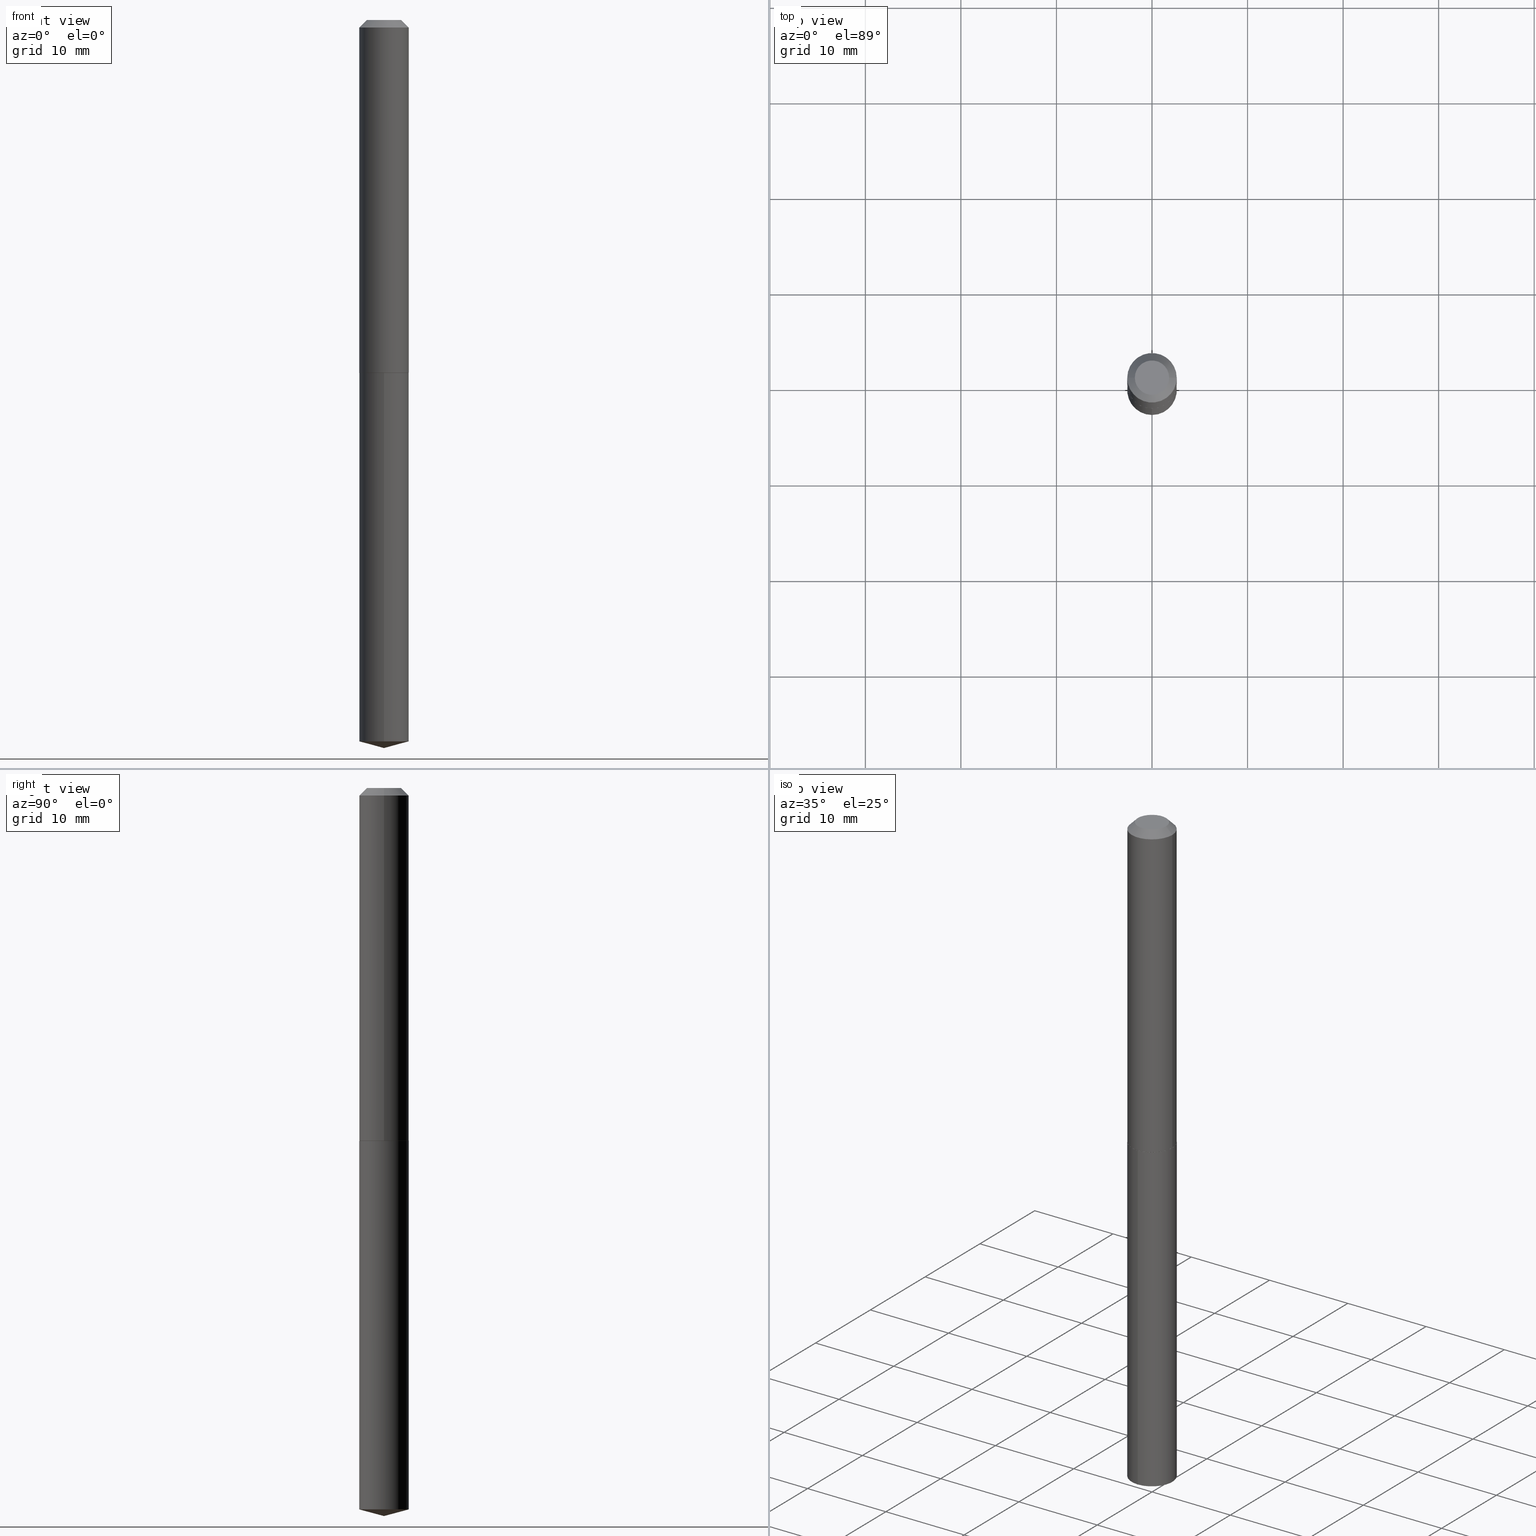
[diagram: canonical four-view strip — front | top / right | iso, engineering-drawing reading convention]
A machine part, canonical four-view strip (front | top / right | iso — engineering-drawing reading convention). The complete STEP part file that produces these views, byte-faithful:
ISO-10303-21;
HEADER;
FILE_DESCRIPTION (( 'STEP AP203' ),
    '1' );
FILE_NAME ('53006.STEP',
    '2024-04-22T18:51:04',
    ( '' ),
    ( '' ),
    'SwSTEP 2.0',
    'SolidWorks 2023',
    '' );
FILE_SCHEMA (( 'CONFIG_CONTROL_DESIGN' ));
ENDSEC;

DATA;
#1 = CARTESIAN_POINT ( 'NONE',  ( 7.642090019328598283E-31, -1.091087918388489651E-16, -0.03125000000000019429 ) ) ;
#2 = VERTEX_POINT ( 'NONE', #36 ) ;
#3 = CARTESIAN_POINT ( 'NONE',  ( 3.555711644193189020E-29, -5.076613866677933538E-15, -1.454000000000000181 ) ) ;
#4 = MANIFOLD_SOLID_BREP ( 'Body-Move/Copy2[1]', #266 ) ;
#5 = VECTOR ( 'NONE', #325, 39.37007874015748143 ) ;
#6 = ORIENTED_EDGE ( 'NONE', *, *, #367, .F. ) ;
#7 = CARTESIAN_POINT ( 'NONE',  ( 3.555711644193189580E-29, -5.076613866677935115E-15, -1.454000000000000403 ) ) ;
#8 = VERTEX_POINT ( 'NONE', #282 ) ;
#9 = PLANE ( 'NONE',  #347 ) ;
#10 = ORIENTED_EDGE ( 'NONE', *, *, #355, .T. ) ;
#11 = DIRECTION ( 'NONE',  ( -2.445468806185136597E-29, 3.491481338843145583E-15, 1.000000000000000000 ) ) ;
#12 = LINE ( 'NONE', #104, #154 ) ;
#13 = AXIS2_PLACEMENT_3D ( 'NONE', #52, #299, #22 ) ;
#14 = EDGE_CURVE ( 'NONE', #365, #8, #12, .T. ) ;
#15 = CALENDAR_DATE ( 2024, 22, 4 ) ;
#16 = PERSON_AND_ORGANIZATION ( #289, #128 ) ;
#17 = PERSON_AND_ORGANIZATION_ROLE ( 'classification_officer' ) ;
#18 = DIRECTION ( 'NONE',  ( 1.000000000000000000, -6.982962677686263555E-15, 0.000000000000000000 ) ) ;
#19 = DATE_AND_TIME ( #15, #285 ) ;
#20 = CARTESIAN_POINT ( 'NONE',  ( -7.122621931239635953E-16, -0.1020000000000050727, -1.453999999999999737 ) ) ;
#21 = DIRECTION ( 'NONE',  ( -2.445468806185136597E-29, 3.491481338843145583E-15, 1.000000000000000000 ) ) ;
#22 = DIRECTION ( 'NONE',  ( -1.000000000000000000, 6.982962677686266711E-15, 0.000000000000000000 ) ) ;
#23 = AXIS2_PLACEMENT_3D ( 'NONE', #208, #37, #273 ) ;
#24 = LOCAL_TIME ( 14, 51, 4.000000000000000000, #353 ) ;
#25 = DIRECTION ( 'NONE',  ( -6.982962677686266711E-15, -1.000000000000000000, 2.678282346729670008E-15 ) ) ;
#26 = VERTEX_POINT ( 'NONE', #68 ) ;
#27 = DIRECTION ( 'NONE',  ( 6.982962677686265922E-15, 1.000000000000000000, -3.509091813861953819E-15 ) ) ;
#28 = ORIENTED_EDGE ( 'NONE', *, *, #265, .T. ) ;
#29 = LINE ( 'NONE', #343, #105 ) ;
#30 = CIRCLE ( 'NONE', #252, 0.1015000000000002706 ) ;
#31 = VERTEX_POINT ( 'NONE', #220 ) ;
#32 = EDGE_CURVE ( 'NONE', #145, #61, #190, .T. ) ;
#33 = CYLINDRICAL_SURFACE ( 'NONE', #23, 0.1020000000000000767 ) ;
#34 = ORIENTED_EDGE ( 'NONE', *, *, #175, .T. ) ;
#35 = CARTESIAN_POINT ( 'NONE',  ( -0.1019999999999999934, 6.031534012851501906E-16, -0.03125000000000019429 ) ) ;
#36 = CARTESIAN_POINT ( 'NONE',  ( -0.1019999999999999934, -1.867234868448377340E-15, -0.03125000000000019429 ) ) ;
#37 = DIRECTION ( 'NONE',  ( -2.445468806185136597E-29, 3.491481338843145583E-15, 1.000000000000000000 ) ) ;
#38 = AXIS2_PLACEMENT_3D ( 'NONE', #156, #51, #45 ) ;
#39 = EDGE_CURVE ( 'NONE', #31, #91, #369, .T. ) ;
#40 = AXIS2_PLACEMENT_3D ( 'NONE', #3, #363, #144 ) ;
#41 = DIRECTION ( 'NONE',  ( 1.000000000000000000, -6.982962677686267499E-15, 4.876168129004390450E-29 ) ) ;
#42 = APPROVAL ( #130, 'UNSPECIFIED' ) ;
#43 = APPROVAL_ROLE ( '' ) ;
#44 = APPROVAL_DATE_TIME ( #19, #194 ) ;
#45 = DIRECTION ( 'NONE',  ( -6.982962677686265922E-15, -1.000000000000000000, 5.356564693459337649E-15 ) ) ;
#46 = EDGE_CURVE ( 'NONE', #335, #61, #205, .T. ) ;
#47 = APPROVAL_STATUS ( 'not_yet_approved' ) ;
#48 = CONICAL_SURFACE ( 'NONE', #181, 0.1020000000000001739, 0.7853981633971751641 ) ;
#49 = VECTOR ( 'NONE', #64, 39.37007874015748143 ) ;
#50 = DIRECTION ( 'NONE',  ( 2.438088387897960049E-29, -3.491481338843145188E-15, -1.000000000000000000 ) ) ;
#51 = DIRECTION ( 'NONE',  ( -2.433171477205870271E-29, 3.509091813861953819E-15, 1.000000000000000000 ) ) ;
#52 = CARTESIAN_POINT ( 'NONE',  ( 7.642090019328598283E-31, -1.091087918388489651E-16, -0.03125000000000019429 ) ) ;
#53 = ADVANCED_BREP_SHAPE_REPRESENTATION ( '53006', ( #4, #256, #158 ), #269 ) ;
#54 = CIRCLE ( 'NONE', #332, 0.1019999999999999934 ) ;
#55 = DIRECTION ( 'NONE',  ( -6.982962677686266711E-15, -1.000000000000000000, 3.510303681827690131E-15 ) ) ;
#56 = ORIENTED_EDGE ( 'NONE', *, *, #341, .F. ) ;
#57 = CARTESIAN_POINT ( 'NONE',  ( 2.246126659432003959E-48, -3.206873584422743139E-34, -9.184850993605185290E-20 ) ) ;
#58 = ORIENTED_EDGE ( 'NONE', *, *, #286, .T. ) ;
#59 = FACE_OUTER_BOUND ( 'NONE', #122, .T. ) ;
#60 = EDGE_CURVE ( 'NONE', #8, #65, #258, .T. ) ;
#61 = VERTEX_POINT ( 'NONE', #357 ) ;
#62 = CONICAL_SURFACE ( 'NONE', #287, 146.9311341562529378, 1.308996938995743653 ) ;
#63 = ORIENTED_EDGE ( 'NONE', *, *, #14, .F. ) ;
#64 = DIRECTION ( 'NONE',  ( 0.7071067811863543939, -2.468850131080234027E-15, 0.7071067811867406405 ) ) ;
#65 = VERTEX_POINT ( 'NONE', #330 ) ;
#66 = CYLINDRICAL_SURFACE ( 'NONE', #40, 0.1020000000000000212 ) ;
#67 = EDGE_CURVE ( 'NONE', #61, #335, #118, .T. ) ;
#68 = CARTESIAN_POINT ( 'NONE',  ( 7.247535904753751127E-16, 0.1019999999999949281, -1.454000000000000403 ) ) ;
#69 = APPLICATION_CONTEXT ( 'configuration controlled 3d designs of mechanical parts and assemblies' ) ;
#70 = AXIS2_PLACEMENT_3D ( 'NONE', #114, #85, #139 ) ;
#71 = APPROVAL_PERSON_ORGANIZATION ( #193, #42, #320 ) ;
#72 = CC_DESIGN_PERSON_AND_ORGANIZATION_ASSIGNMENT ( #284, #110, ( #225 ) ) ;
#73 = SECURITY_CLASSIFICATION_LEVEL ( 'unclassified' ) ;
#74 = DIRECTION ( 'NONE',  ( 0.000000000000000000, 0.000000000000000000, 1.000000000000000000 ) ) ;
#75 = CIRCLE ( 'NONE', #106, 0.1019999999999999934 ) ;
#76 = APPLICATION_PROTOCOL_DEFINITION ( 'international standard', 'config_control_design', 1994, #89 ) ;
#77 = FACE_OUTER_BOUND ( 'NONE', #185, .T. ) ;
#78 = ADVANCED_FACE ( 'NONE', ( #198 ), #48, .T. ) ;
#79 = CALENDAR_DATE ( 2024, 22, 4 ) ;
#80 = CARTESIAN_POINT ( 'NONE',  ( 1.123063329716001979E-48, -1.603436792211371569E-34, -4.592425496802592645E-20 ) ) ;
#81 = AXIS2_PLACEMENT_3D ( 'NONE', #164, #21, #270 ) ;
#82 = AXIS2_PLACEMENT_3D ( 'NONE', #1, #278, #237 ) ;
#83 = EDGE_LOOP ( 'NONE', ( #119, #182 ) ) ;
#84 = DIMENSIONAL_EXPONENTS ( 1.000000000000000000, 0.000000000000000000, 0.000000000000000000, 0.000000000000000000, 0.000000000000000000, 0.000000000000000000, 0.000000000000000000 ) ;
#85 = DIRECTION ( 'NONE',  ( -2.445468806185136597E-29, 3.491481338843145583E-15, 1.000000000000000000 ) ) ;
#86 = EDGE_CURVE ( 'NONE', #91, #102, #137, .T. ) ;
#87 = CARTESIAN_POINT ( 'NONE',  ( 7.299514431617611935E-29, -1.052727544158586146E-14, -3.000000000000000444 ) ) ;
#88 = CC_DESIGN_PERSON_AND_ORGANIZATION_ASSIGNMENT ( #16, #257, ( #259 ) ) ;
#89 = APPLICATION_CONTEXT ( 'configuration controlled 3d designs of mechanical parts and assemblies' ) ;
#90 = DIRECTION ( 'NONE',  ( -2.433171477205870271E-29, 3.509091813861953819E-15, 1.000000000000000000 ) ) ;
#91 = VERTEX_POINT ( 'NONE', #323 ) ;
#92 = VECTOR ( 'NONE', #248, 39.37007874015748143 ) ;
#93 = DIRECTION ( 'NONE',  ( 2.433171477205869991E-29, -3.509091813861953819E-15, -1.000000000000000000 ) ) ;
#94 = APPROVAL_PERSON_ORGANIZATION ( #232, #194, #43 ) ;
#95 = ORIENTED_EDGE ( 'NONE', *, *, #67, .F. ) ;
#96 = PLANE ( 'NONE',  #206 ) ;
#97 = ORIENTED_EDGE ( 'NONE', *, *, #387, .F. ) ;
#98 = DIRECTION ( 'NONE',  ( -2.445468806185136597E-29, 3.491481338843145583E-15, 1.000000000000000000 ) ) ;
#99 = ORIENTED_EDGE ( 'NONE', *, *, #86, .F. ) ;
#100 = CIRCLE ( 'NONE', #82, 0.1019999999999999934 ) ;
#101 = EDGE_CURVE ( 'NONE', #338, #365, #227, .T. ) ;
#102 = VERTEX_POINT ( 'NONE', #140 ) ;
#103 = DIRECTION ( 'NONE',  ( 1.000000000000000000, -6.982962677686267499E-15, 4.876168129004390450E-29 ) ) ;
#104 = CARTESIAN_POINT ( 'NONE',  ( -0.1020000000000001739, -4.350114535533209201E-15, -1.453500000000000236 ) ) ;
#105 = VECTOR ( 'NONE', #177, 39.37007874015748854 ) ;
#106 = AXIS2_PLACEMENT_3D ( 'NONE', #301, #169, #296 ) ;
#107 = PERSON_AND_ORGANIZATION_ROLE ( 'design_owner' ) ;
#108 = CARTESIAN_POINT ( 'NONE',  ( 3.555711644193189020E-29, -5.076613866677933538E-15, -1.454000000000000181 ) ) ;
#109 = CARTESIAN_POINT ( 'NONE',  ( 3.554488909790096218E-29, -5.074868126008512823E-15, -1.453500000000000236 ) ) ;
#110 = PERSON_AND_ORGANIZATION_ROLE ( 'creator' ) ;
#111 = ORIENTED_EDGE ( 'NONE', *, *, #355, .F. ) ;
#112 = DIRECTION ( 'NONE',  ( -2.433171477205870271E-29, 3.509091813861953819E-15, 1.000000000000000000 ) ) ;
#113 = CONICAL_SURFACE ( 'NONE', #326, 0.1019999999999999934, 0.7853981633974452814 ) ;
#114 = CARTESIAN_POINT ( 'NONE',  ( 3.554488909790096218E-29, -5.074868126008512823E-15, -1.453500000000000236 ) ) ;
#115 = DIRECTION ( 'NONE',  ( -2.445468806185136877E-29, 3.491481338843145188E-15, 1.000000000000000000 ) ) ;
#116 = EDGE_LOOP ( 'NONE', ( #385, #241, #362, #56 ) ) ;
#117 = CARTESIAN_POINT ( 'NONE',  ( 3.555711644193189580E-29, -5.076613866677935115E-15, -1.454000000000000403 ) ) ;
#118 = CIRCLE ( 'NONE', #165, 0.1020000000000000351 ) ;
#119 = ORIENTED_EDGE ( 'NONE', *, *, #39, .T. ) ;
#120 = VECTOR ( 'NONE', #115, 39.37007874015748143 ) ;
#121 = DIRECTION ( 'NONE',  ( -0.7071067811865453523, 2.468850131082234184E-15, -0.7071067811865496822 ) ) ;
#122 = EDGE_LOOP ( 'NONE', ( #209, #124 ) ) ;
#123 = FACE_OUTER_BOUND ( 'NONE', #342, .T. ) ;
#124 = ORIENTED_EDGE ( 'NONE', *, *, #213, .T. ) ;
#125 = CARTESIAN_POINT ( 'NONE',  ( 7.642090019328598283E-31, -1.091087918388489651E-16, -0.03125000000000019429 ) ) ;
#126 = EDGE_LOOP ( 'NONE', ( #99, #302, #239, #309 ) ) ;
#127 = DIRECTION ( 'NONE',  ( 1.000000000000000000, -6.982962677686266711E-15, 0.000000000000000000 ) ) ;
#128 = ORGANIZATION ( 'UNSPECIFIED', 'UNSPECIFIED', '' ) ;
#129 = DIRECTION ( 'NONE',  ( -0.7071067811863543939, 7.493145998869656807E-15, 0.7071067811867406405 ) ) ;
#130 = APPROVAL_STATUS ( 'not_yet_approved' ) ;
#131 = SECURITY_CLASSIFICATION ( '', '', #73 ) ;
#132 = ADVANCED_FACE ( 'NONE', ( #390 ), #174, .T. ) ;
#133 = DATE_AND_TIME ( #226, #24 ) ;
#134 = AXIS2_PLACEMENT_3D ( 'NONE', #80, #50, #386 ) ;
#135 = COORDINATED_UNIVERSAL_TIME_OFFSET ( 5, 0, .BEHIND. ) ;
#136 = CC_DESIGN_APPROVAL ( #194, ( #225 ) ) ;
#137 = LINE ( 'NONE', #356, #5 ) ;
#138 = DATE_TIME_ROLE ( 'classification_date' ) ;
#139 = DIRECTION ( 'NONE',  ( 1.000000000000000000, -6.982962677686263555E-15, 0.000000000000000000 ) ) ;
#140 = CARTESIAN_POINT ( 'NONE',  ( 0.1019999999999999934, -8.213709849628480961E-16, -0.03125000000000019429 ) ) ;
#141 = LINE ( 'NONE', #184, #300 ) ;
#142 = DIRECTION ( 'NONE',  ( -2.445468806185136597E-29, 3.491481338843145583E-15, 1.000000000000000000 ) ) ;
#143 = ORIENTED_EDGE ( 'NONE', *, *, #337, .F. ) ;
#144 = DIRECTION ( 'NONE',  ( -6.982962677686265922E-15, -1.000000000000000000, 2.678282346729669219E-15 ) ) ;
#145 = VERTEX_POINT ( 'NONE', #87 ) ;
#146 = AXIS2_PLACEMENT_3D ( 'NONE', #201, #142, #264 ) ;
#147 = DIRECTION ( 'NONE',  ( -2.433171477205870271E-29, 3.509091813861953819E-15, 1.000000000000000000 ) ) ;
#148 = ORIENTED_EDGE ( 'NONE', *, *, #367, .T. ) ;
#149 = DIRECTION ( 'NONE',  ( 1.000000000000000000, -6.982962677686271444E-15, 0.000000000000000000 ) ) ;
#150 = ADVANCED_FACE ( 'NONE', ( #231 ), #191, .T. ) ;
#151 = ORIENTED_EDGE ( 'NONE', *, *, #101, .F. ) ;
#152 = CARTESIAN_POINT ( 'NONE',  ( 0.1015000000000002706, -5.785384578463093174E-15, -1.454000000000000403 ) ) ;
#153 = ORIENTED_EDGE ( 'NONE', *, *, #46, .T. ) ;
#154 = VECTOR ( 'NONE', #129, 39.37007874015748143 ) ;
#155 = CARTESIAN_POINT ( 'NONE',  ( 0.000000000000000000, 0.000000000000000000, 0.000000000000000000 ) ) ;
#156 = CARTESIAN_POINT ( 'NONE',  ( 7.250894182052361242E-29, -1.040576346250403292E-14, -2.972669182372025265 ) ) ;
#157 = CIRCLE ( 'NONE', #318, 0.1019999999999999934 ) ;
#158 = AXIS2_PLACEMENT_3D ( 'NONE', #155, #74, #378 ) ;
#159 = PRODUCT ( '53006', '53006', '', ( #162 ) ) ;
#160 = ADVANCED_FACE ( 'NONE', ( #263 ), #352, .F. ) ;
#161 = DESIGN_CONTEXT ( 'detailed design', #69, 'design' ) ;
#162 = MECHANICAL_CONTEXT ( 'NONE', #89, 'mechanical' ) ;
#163 = DATE_AND_TIME ( #382, #389 ) ;
#164 = CARTESIAN_POINT ( 'NONE',  ( 3.554488909790096218E-29, -5.074868126008512823E-15, -1.453500000000000236 ) ) ;
#165 = AXIS2_PLACEMENT_3D ( 'NONE', #298, #90, #293 ) ;
#166 = CIRCLE ( 'NONE', #375, 0.07074999999999999345 ) ;
#167 = APPROVAL_ROLE ( '' ) ;
#168 = ORIENTED_EDGE ( 'NONE', *, *, #60, .T. ) ;
#169 = DIRECTION ( 'NONE',  ( -2.433171477205870271E-29, 3.509091813861953819E-15, 1.000000000000000000 ) ) ;
#170 = EDGE_LOOP ( 'NONE', ( #247, #153, #58, #277 ) ) ;
#171 = DIRECTION ( 'NONE',  ( -2.445468806185136597E-29, 3.491481338843145583E-15, 1.000000000000000000 ) ) ;
#172 = SHAPE_DEFINITION_REPRESENTATION ( #253, #53 ) ;
#173 = DIRECTION ( 'NONE',  ( -2.433171477205870271E-29, 3.509091813861953819E-15, 1.000000000000000000 ) ) ;
#174 = CYLINDRICAL_SURFACE ( 'NONE', #146, 0.1020000000000000767 ) ;
#175 = EDGE_CURVE ( 'NONE', #8, #2, #328, .T. ) ;
#176 = ORIENTED_EDGE ( 'NONE', *, *, #349, .F. ) ;
#177 = DIRECTION ( 'NONE',  ( 6.863315791527684004E-15, 0.9659258262890682012, 0.2588190451025207395 ) ) ;
#178 = ORIENTED_EDGE ( 'NONE', *, *, #359, .T. ) ;
#179 = CARTESIAN_POINT ( 'NONE',  ( 0.1020000000000001739, -5.787130319132512311E-15, -1.453500000000000236 ) ) ;
#180 = ADVANCED_FACE ( 'NONE', ( #204 ), #215, .T. ) ;
#181 = AXIS2_PLACEMENT_3D ( 'NONE', #109, #171, #18 ) ;
#182 = ORIENTED_EDGE ( 'NONE', *, *, #337, .T. ) ;
#183 = AXIS2_PLACEMENT_3D ( 'NONE', #303, #339, #336 ) ;
#184 = CARTESIAN_POINT ( 'NONE',  ( 7.247535904753377404E-16, 0.1019999999999949419, -1.454000000000000403 ) ) ;
#185 = EDGE_LOOP ( 'NONE', ( #295, #28, #272, #307 ) ) ;
#186 = CC_DESIGN_PERSON_AND_ORGANIZATION_ASSIGNMENT ( #195, #107, ( #159 ) ) ;
#187 = DIRECTION ( 'NONE',  ( 1.000000000000000000, -6.982962677686265922E-15, 4.876176775795935793E-29 ) ) ;
#188 = ORIENTED_EDGE ( 'NONE', *, *, #32, .F. ) ;
#189 = FACE_OUTER_BOUND ( 'NONE', #211, .T. ) ;
#190 = LINE ( 'NONE', #346, #199 ) ;
#191 = CONICAL_SURFACE ( 'NONE', #267, 146.9311341562529378, 1.308996938995743653 ) ;
#192 =( NAMED_UNIT ( * ) SI_UNIT ( $, .STERADIAN. ) SOLID_ANGLE_UNIT ( ) );
#193 = PERSON_AND_ORGANIZATION ( #289, #128 ) ;
#194 = APPROVAL ( #288, 'UNSPECIFIED' ) ;
#195 = PERSON_AND_ORGANIZATION ( #289, #128 ) ;
#196 = CARTESIAN_POINT ( 'NONE',  ( 3.555711644193189020E-29, -5.076613866677933538E-15, -1.454000000000000181 ) ) ;
#197 = DATE_AND_TIME ( #79, #315 ) ;
#198 = FACE_OUTER_BOUND ( 'NONE', #116, .T. ) ;
#199 = VECTOR ( 'NONE', #374, 39.37007874015748854 ) ;
#200 = APPROVAL_DATE_TIME ( #163, #42 ) ;
#201 = CARTESIAN_POINT ( 'NONE',  ( 0.000000000000000000, 0.000000000000000000, 0.000000000000000000 ) ) ;
#202 = CC_DESIGN_PERSON_AND_ORGANIZATION_ASSIGNMENT ( #290, #292, ( #259 ) ) ;
#203 = DIRECTION ( 'NONE',  ( -6.982962677686265922E-15, -1.000000000000000000, 2.678282346729669219E-15 ) ) ;
#204 = FACE_OUTER_BOUND ( 'NONE', #275, .T. ) ;
#205 = CIRCLE ( 'NONE', #38, 0.1020000000000000351 ) ;
#206 = AXIS2_PLACEMENT_3D ( 'NONE', #308, #93, #27 ) ;
#207 = ORIENTED_EDGE ( 'NONE', *, *, #376, .T. ) ;
#208 = CARTESIAN_POINT ( 'NONE',  ( 0.000000000000000000, 0.000000000000000000, 0.000000000000000000 ) ) ;
#209 = ORIENTED_EDGE ( 'NONE', *, *, #221, .T. ) ;
#210 = LINE ( 'NONE', #179, #49 ) ;
#211 = EDGE_LOOP ( 'NONE', ( #151, #244 ) ) ;
#212 = LINE ( 'NONE', #35, #274 ) ;
#213 = EDGE_CURVE ( 'NONE', #26, #218, #75, .T. ) ;
#214 = ORIENTED_EDGE ( 'NONE', *, *, #46, .F. ) ;
#215 = CONICAL_SURFACE ( 'NONE', #70, 0.1020000000000001739, 0.7853981633971751641 ) ;
#216 = DIRECTION ( 'NONE',  ( 2.445468806185136597E-29, -3.491481338843145583E-15, -1.000000000000000000 ) ) ;
#217 = LOCAL_TIME ( 14, 51, 4.000000000000000000, #294 ) ;
#218 = VERTEX_POINT ( 'NONE', #20 ) ;
#219 =( LENGTH_UNIT ( ) NAMED_UNIT ( * ) SI_UNIT ( $, .METRE. ) );
#220 = CARTESIAN_POINT ( 'NONE',  ( -0.07074999999999999345, 5.485990053657267250E-16, -9.184850993969744569E-20 ) ) ;
#221 = EDGE_CURVE ( 'NONE', #218, #26, #54, .T. ) ;
#222 = CC_DESIGN_APPROVAL ( #42, ( #259 ) ) ;
#223 = EDGE_CURVE ( 'NONE', #65, #102, #350, .T. ) ;
#224 = COORDINATED_UNIVERSAL_TIME_OFFSET ( 5, 0, .BEHIND. ) ;
#225 = PRODUCT_DEFINITION ( 'UNKNOWN', '', #259, #161 ) ;
#226 = CALENDAR_DATE ( 2024, 22, 4 ) ;
#227 = CIRCLE ( 'NONE', #361, 0.1015000000000002706 ) ;
#228 = APPLICATION_PROTOCOL_DEFINITION ( 'international standard', 'config_control_design', 1994, #69 ) ;
#229 = CARTESIAN_POINT ( 'NONE',  ( -8.847675789794694845E-28, 1.276515512072786388E-13, 36.37007874015748143 ) ) ;
#230 =( NAMED_UNIT ( * ) PLANE_ANGLE_UNIT ( ) SI_UNIT ( $, .RADIAN. ) );
#231 = FACE_OUTER_BOUND ( 'NONE', #327, .T. ) ;
#232 = PERSON_AND_ORGANIZATION ( #289, #128 ) ;
#233 = CARTESIAN_POINT ( 'NONE',  ( 0.1020000000000000767, -7.122621931239997843E-16, 4.973700311311858208E-30 ) ) ;
#234 = DIRECTION ( 'NONE',  ( -2.433171477205870271E-29, 3.509091813861953819E-15, 1.000000000000000000 ) ) ;
#235 = CARTESIAN_POINT ( 'NONE',  ( 3.555711644193189580E-29, -5.076613866677935115E-15, -1.454000000000000403 ) ) ;
#236 = ORIENTED_EDGE ( 'NONE', *, *, #60, .F. ) ;
#237 = DIRECTION ( 'NONE',  ( 1.000000000000000000, -6.982962677686266711E-15, 0.000000000000000000 ) ) ;
#238 = AXIS2_PLACEMENT_3D ( 'NONE', #196, #234, #203 ) ;
#239 = ORIENTED_EDGE ( 'NONE', *, *, #349, .T. ) ;
#240 = DIRECTION ( 'NONE',  ( -2.445468806185136597E-29, 3.491481338843145583E-15, 1.000000000000000000 ) ) ;
#241 = ORIENTED_EDGE ( 'NONE', *, *, #14, .T. ) ;
#242 = DIRECTION ( 'NONE',  ( -6.982962677686266711E-15, -1.000000000000000000, 3.510303681827690131E-15 ) ) ;
#243 = ADVANCED_FACE ( 'NONE', ( #77 ), #354, .T. ) ;
#244 = ORIENTED_EDGE ( 'NONE', *, *, #359, .F. ) ;
#245 = FACE_OUTER_BOUND ( 'NONE', #304, .T. ) ;
#246 = CC_DESIGN_PERSON_AND_ORGANIZATION_ASSIGNMENT ( #351, #17, ( #131 ) ) ;
#247 = ORIENTED_EDGE ( 'NONE', *, *, #265, .F. ) ;
#248 = DIRECTION ( 'NONE',  ( -2.433171477205870271E-29, 3.509091813861953819E-15, 1.000000000000000000 ) ) ;
#249 = CARTESIAN_POINT ( 'NONE',  ( 2.246126659432003959E-48, -3.206873584422743139E-34, -9.184850993605185290E-20 ) ) ;
#250 = LENGTH_MEASURE_WITH_UNIT ( LENGTH_MEASURE( 0.02539999999999999897 ), #219 );
#251 = CC_DESIGN_DATE_AND_TIME_ASSIGNMENT ( #197, #138, ( #131 ) ) ;
#252 = AXIS2_PLACEMENT_3D ( 'NONE', #7, #240, #149 ) ;
#253 = PRODUCT_DEFINITION_SHAPE ( 'NONE', 'NONE',  #225 ) ;
#254 = CC_DESIGN_APPROVAL ( #317, ( #131 ) ) ;
#255 = ADVANCED_FACE ( 'NONE', ( #329 ), #380, .T. ) ;
#256 = MANIFOLD_SOLID_BREP ( 'Body-Move/Copy2[2]', #331 ) ;
#257 = PERSON_AND_ORGANIZATION_ROLE ( 'design_supplier' ) ;
#258 = CIRCLE ( 'NONE', #81, 0.1020000000000001739 ) ;
#259 = PRODUCT_DEFINITION_FORMATION_WITH_SPECIFIED_SOURCE ( 'ANY', '', #159, .NOT_KNOWN. ) ;
#260 = DATE_TIME_ROLE ( 'creation_date' ) ;
#261 = DIRECTION ( 'NONE',  ( -2.445468806185136597E-29, 3.491481338843145583E-15, 1.000000000000000000 ) ) ;
#262 = CALENDAR_DATE ( 2024, 22, 4 ) ;
#263 = FACE_OUTER_BOUND ( 'NONE', #83, .T. ) ;
#264 = DIRECTION ( 'NONE',  ( 1.000000000000000000, -6.982962677686267499E-15, 4.876176775795935793E-29 ) ) ;
#265 = EDGE_CURVE ( 'NONE', #335, #26, #141, .T. ) ;
#266 = CLOSED_SHELL ( 'NONE', ( #243, #150, #377, #281, #311 ) ) ;
#267 = AXIS2_PLACEMENT_3D ( 'NONE', #229, #173, #55 ) ;
#268 = APPROVAL_DATE_TIME ( #384, #317 ) ;
#269 =( GEOMETRIC_REPRESENTATION_CONTEXT ( 3 ) GLOBAL_UNCERTAINTY_ASSIGNED_CONTEXT ( ( #319 ) ) GLOBAL_UNIT_ASSIGNED_CONTEXT ( ( #322, #230, #192 ) ) REPRESENTATION_CONTEXT ( 'NONE', 'WORKASPACE' ) );
#270 = DIRECTION ( 'NONE',  ( 1.000000000000000000, -6.982962677686263555E-15, 0.000000000000000000 ) ) ;
#271 = FACE_OUTER_BOUND ( 'NONE', #358, .T. ) ;
#272 = ORIENTED_EDGE ( 'NONE', *, *, #221, .F. ) ;
#273 = DIRECTION ( 'NONE',  ( 1.000000000000000000, -6.982962677686267499E-15, 4.876176775795935793E-29 ) ) ;
#274 = VECTOR ( 'NONE', #121, 39.37007874015748143 ) ;
#275 = EDGE_LOOP ( 'NONE', ( #63, #178, #312, #236 ) ) ;
#276 = DIRECTION ( 'NONE',  ( -2.438088387897960049E-29, 3.491481338843145188E-15, 1.000000000000000000 ) ) ;
#277 = ORIENTED_EDGE ( 'NONE', *, *, #213, .F. ) ;
#278 = DIRECTION ( 'NONE',  ( -2.445468806185136597E-29, 3.491481338843145583E-15, 1.000000000000000000 ) ) ;
#279 = EDGE_LOOP ( 'NONE', ( #344, #168, #368, #97 ) ) ;
#280 = CARTESIAN_POINT ( 'NONE',  ( -8.847675789794694845E-28, 1.276515512072786388E-13, 36.37007874015748143 ) ) ;
#281 = ADVANCED_FACE ( 'NONE', ( #310 ), #66, .T. ) ;
#282 = CARTESIAN_POINT ( 'NONE',  ( -0.1020000000000001739, -4.350114535533209201E-15, -1.453500000000000236 ) ) ;
#283 = VECTOR ( 'NONE', #388, 39.37007874015748143 ) ;
#284 = PERSON_AND_ORGANIZATION ( #289, #128 ) ;
#285 = LOCAL_TIME ( 14, 51, 4.000000000000000000, #224 ) ;
#286 = EDGE_CURVE ( 'NONE', #61, #218, #360, .T. ) ;
#287 = AXIS2_PLACEMENT_3D ( 'NONE', #280, #147, #242 ) ;
#288 = APPROVAL_STATUS ( 'not_yet_approved' ) ;
#289 = PERSON ( 'UNSPECIFIED', 'UNSPECIFIED', 'UNSPECIFIED', ('UNSPECIFIED'), ('UNSPECIFIED'), ('UNSPECIFIED') ) ;
#290 = PERSON_AND_ORGANIZATION ( #289, #128 ) ;
#291 = ADVANCED_FACE ( 'NONE', ( #189 ), #9, .F. ) ;
#292 = PERSON_AND_ORGANIZATION_ROLE ( 'creator' ) ;
#293 = DIRECTION ( 'NONE',  ( -6.982962677686265922E-15, -1.000000000000000000, 5.356564693459337649E-15 ) ) ;
#294 = COORDINATED_UNIVERSAL_TIME_OFFSET ( 5, 0, .BEHIND. ) ;
#295 = ORIENTED_EDGE ( 'NONE', *, *, #67, .T. ) ;
#296 = DIRECTION ( 'NONE',  ( -6.982962677686266711E-15, -1.000000000000000000, 2.678282346729670008E-15 ) ) ;
#297 = ORIENTED_EDGE ( 'NONE', *, *, #32, .T. ) ;
#298 = CARTESIAN_POINT ( 'NONE',  ( 7.250894182052361242E-29, -1.040576346250403292E-14, -2.972669182372025265 ) ) ;
#299 = DIRECTION ( 'NONE',  ( 2.445468806185136597E-29, -3.491481338843145583E-15, -1.000000000000000000 ) ) ;
#300 = VECTOR ( 'NONE', #366, 39.37007874015748143 ) ;
#301 = CARTESIAN_POINT ( 'NONE',  ( 3.555711644193189020E-29, -5.076613866677933538E-15, -1.454000000000000181 ) ) ;
#302 = ORIENTED_EDGE ( 'NONE', *, *, #39, .F. ) ;
#303 = CARTESIAN_POINT ( 'NONE',  ( 3.554488909790096218E-29, -5.074868126008512823E-15, -1.453500000000000236 ) ) ;
#304 = EDGE_LOOP ( 'NONE', ( #111, #297, #214 ) ) ;
#305 = CARTESIAN_POINT ( 'NONE',  ( -7.122621931239636939E-16, -0.1020000000000050866, -1.453999999999999737 ) ) ;
#306 = CIRCLE ( 'NONE', #183, 0.1020000000000001739 ) ;
#307 = ORIENTED_EDGE ( 'NONE', *, *, #286, .F. ) ;
#308 = CARTESIAN_POINT ( 'NONE',  ( 3.555711644193189020E-29, -5.076613866677933538E-15, -1.454000000000000181 ) ) ;
#309 = ORIENTED_EDGE ( 'NONE', *, *, #387, .T. ) ;
#310 = FACE_OUTER_BOUND ( 'NONE', #170, .T. ) ;
#311 = ADVANCED_FACE ( 'NONE', ( #59 ), #96, .F. ) ;
#312 = ORIENTED_EDGE ( 'NONE', *, *, #341, .T. ) ;
#313 = CARTESIAN_POINT ( 'NONE',  ( -0.1015000000000002706, -4.352763762707320402E-15, -1.454000000000000403 ) ) ;
#314 = DIRECTION ( 'NONE',  ( -2.445468806185136597E-29, 3.491481338843145583E-15, 1.000000000000000000 ) ) ;
#315 = LOCAL_TIME ( 14, 51, 4.000000000000000000, #135 ) ;
#316 = ADVANCED_FACE ( 'NONE', ( #271 ), #33, .T. ) ;
#317 = APPROVAL ( #47, 'UNSPECIFIED' ) ;
#318 = AXIS2_PLACEMENT_3D ( 'NONE', #125, #11, #127 ) ;
#319 = UNCERTAINTY_MEASURE_WITH_UNIT (LENGTH_MEASURE( 1.000000000000000082E-05 ), #322, 'distance_accuracy_value', 'NONE');
#320 = APPROVAL_ROLE ( '' ) ;
#321 = ADVANCED_FACE ( 'NONE', ( #123 ), #113, .T. ) ;
#322 =( CONVERSION_BASED_UNIT ( 'INCH', #250 ) LENGTH_UNIT ( ) NAMED_UNIT ( #84 ) );
#323 = CARTESIAN_POINT ( 'NONE',  ( 0.07074999999999999345, -6.471299104769405133E-16, -9.184850993206224087E-20 ) ) ;
#324 = PERSON_AND_ORGANIZATION ( #289, #128 ) ;
#325 = DIRECTION ( 'NONE',  ( 0.7071067811865453523, -7.319954787623248157E-15, -0.7071067811865496822 ) ) ;
#326 = AXIS2_PLACEMENT_3D ( 'NONE', #373, #216, #334 ) ;
#327 = EDGE_LOOP ( 'NONE', ( #188, #10, #95 ) ) ;
#328 = LINE ( 'NONE', #381, #283 ) ;
#329 = FACE_OUTER_BOUND ( 'NONE', #126, .T. ) ;
#330 = CARTESIAN_POINT ( 'NONE',  ( 0.1020000000000001739, -5.787130319132512311E-15, -1.453500000000000236 ) ) ;
#331 = CLOSED_SHELL ( 'NONE', ( #321, #316, #78, #291, #180, #132, #255, #160 ) ) ;
#332 = AXIS2_PLACEMENT_3D ( 'NONE', #108, #112, #25 ) ;
#333 = ORIENTED_EDGE ( 'NONE', *, *, #86, .T. ) ;
#334 = DIRECTION ( 'NONE',  ( -1.000000000000000000, 6.982962677686266711E-15, 0.000000000000000000 ) ) ;
#335 = VERTEX_POINT ( 'NONE', #345 ) ;
#336 = DIRECTION ( 'NONE',  ( 1.000000000000000000, -6.982962677686263555E-15, 0.000000000000000000 ) ) ;
#337 = EDGE_CURVE ( 'NONE', #91, #31, #166, .T. ) ;
#338 = VERTEX_POINT ( 'NONE', #152 ) ;
#339 = DIRECTION ( 'NONE',  ( -2.445468806185136597E-29, 3.491481338843145583E-15, 1.000000000000000000 ) ) ;
#340 = CC_DESIGN_SECURITY_CLASSIFICATION ( #131, ( #259 ) ) ;
#341 = EDGE_CURVE ( 'NONE', #338, #65, #210, .T. ) ;
#342 = EDGE_LOOP ( 'NONE', ( #143, #333, #148, #176 ) ) ;
#343 = CARTESIAN_POINT ( 'NONE',  ( 7.335588642825809883E-29, -1.047606418023116791E-14, -3.000000000000000444 ) ) ;
#344 = ORIENTED_EDGE ( 'NONE', *, *, #175, .F. ) ;
#345 = CARTESIAN_POINT ( 'NONE',  ( 7.247535904753748169E-16, 0.1019999999999896129, -2.972669182372025709 ) ) ;
#346 = CARTESIAN_POINT ( 'NONE',  ( 7.299514431617611935E-29, -1.052727544158586303E-14, -3.000000000000000444 ) ) ;
#347 = AXIS2_PLACEMENT_3D ( 'NONE', #117, #276, #187 ) ;
#348 = COORDINATED_UNIVERSAL_TIME_OFFSET ( 5, 0, .BEHIND. ) ;
#349 = EDGE_CURVE ( 'NONE', #31, #2, #212, .T. ) ;
#350 = LINE ( 'NONE', #233, #120 ) ;
#351 = PERSON_AND_ORGANIZATION ( #289, #128 ) ;
#352 = PLANE ( 'NONE',  #134 ) ;
#353 = COORDINATED_UNIVERSAL_TIME_OFFSET ( 5, 0, .BEHIND. ) ;
#354 = CYLINDRICAL_SURFACE ( 'NONE', #238, 0.1020000000000000212 ) ;
#355 = EDGE_CURVE ( 'NONE', #145, #335, #29, .T. ) ;
#356 = CARTESIAN_POINT ( 'NONE',  ( 0.1019999999999999934, -8.088795876115452443E-16, -0.03125000000000019429 ) ) ;
#357 = CARTESIAN_POINT ( 'NONE',  ( -7.122621931239267160E-16, -0.1020000000000104157, -2.972669182372024821 ) ) ;
#358 = EDGE_LOOP ( 'NONE', ( #207, #34, #6, #372 ) ) ;
#359 = EDGE_CURVE ( 'NONE', #365, #338, #30, .T. ) ;
#360 = LINE ( 'NONE', #305, #92 ) ;
#361 = AXIS2_PLACEMENT_3D ( 'NONE', #235, #261, #383 ) ;
#362 = ORIENTED_EDGE ( 'NONE', *, *, #376, .F. ) ;
#363 = DIRECTION ( 'NONE',  ( -2.433171477205870271E-29, 3.509091813861953819E-15, 1.000000000000000000 ) ) ;
#364 = CC_DESIGN_DATE_AND_TIME_ASSIGNMENT ( #133, #260, ( #225 ) ) ;
#365 = VERTEX_POINT ( 'NONE', #313 ) ;
#366 = DIRECTION ( 'NONE',  ( -2.433171477205870271E-29, 3.509091813861953819E-15, 1.000000000000000000 ) ) ;
#367 = EDGE_CURVE ( 'NONE', #102, #2, #100, .T. ) ;
#368 = ORIENTED_EDGE ( 'NONE', *, *, #223, .T. ) ;
#369 = CIRCLE ( 'NONE', #379, 0.07074999999999999345 ) ;
#370 = PRODUCT_RELATED_PRODUCT_CATEGORY ( 'detail', '', ( #159 ) ) ;
#371 = APPROVAL_PERSON_ORGANIZATION ( #324, #317, #167 ) ;
#372 = ORIENTED_EDGE ( 'NONE', *, *, #223, .F. ) ;
#373 = CARTESIAN_POINT ( 'NONE',  ( 7.642090019328598283E-31, -1.091087918388489651E-16, -0.03125000000000019429 ) ) ;
#374 = DIRECTION ( 'NONE',  ( -6.745023994389829667E-15, -0.9659258262890664248, 0.2588190451025275118 ) ) ;
#375 = AXIS2_PLACEMENT_3D ( 'NONE', #57, #98, #103 ) ;
#376 = EDGE_CURVE ( 'NONE', #65, #8, #306, .T. ) ;
#377 = ADVANCED_FACE ( 'NONE', ( #245 ), #62, .T. ) ;
#378 = DIRECTION ( 'NONE',  ( 1.000000000000000000, 0.000000000000000000, 0.000000000000000000 ) ) ;
#379 = AXIS2_PLACEMENT_3D ( 'NONE', #249, #314, #41 ) ;
#380 = CONICAL_SURFACE ( 'NONE', #13, 0.1019999999999999934, 0.7853981633974452814 ) ;
#381 = CARTESIAN_POINT ( 'NONE',  ( -0.1020000000000000767, 7.247535904753027347E-16, -5.017313792060008286E-30 ) ) ;
#382 = CALENDAR_DATE ( 2024, 22, 4 ) ;
#383 = DIRECTION ( 'NONE',  ( 1.000000000000000000, -6.982962677686271444E-15, 0.000000000000000000 ) ) ;
#384 = DATE_AND_TIME ( #262, #217 ) ;
#385 = ORIENTED_EDGE ( 'NONE', *, *, #101, .T. ) ;
#386 = DIRECTION ( 'NONE',  ( -1.000000000000000000, 6.982962677686265922E-15, -4.876176775795935793E-29 ) ) ;
#387 = EDGE_CURVE ( 'NONE', #2, #102, #157, .T. ) ;
#388 = DIRECTION ( 'NONE',  ( -2.445468806185136877E-29, 3.491481338843145188E-15, 1.000000000000000000 ) ) ;
#389 = LOCAL_TIME ( 14, 51, 4.000000000000000000, #348 ) ;
#390 = FACE_OUTER_BOUND ( 'NONE', #279, .T. ) ;
ENDSEC;
END-ISO-10303-21;
